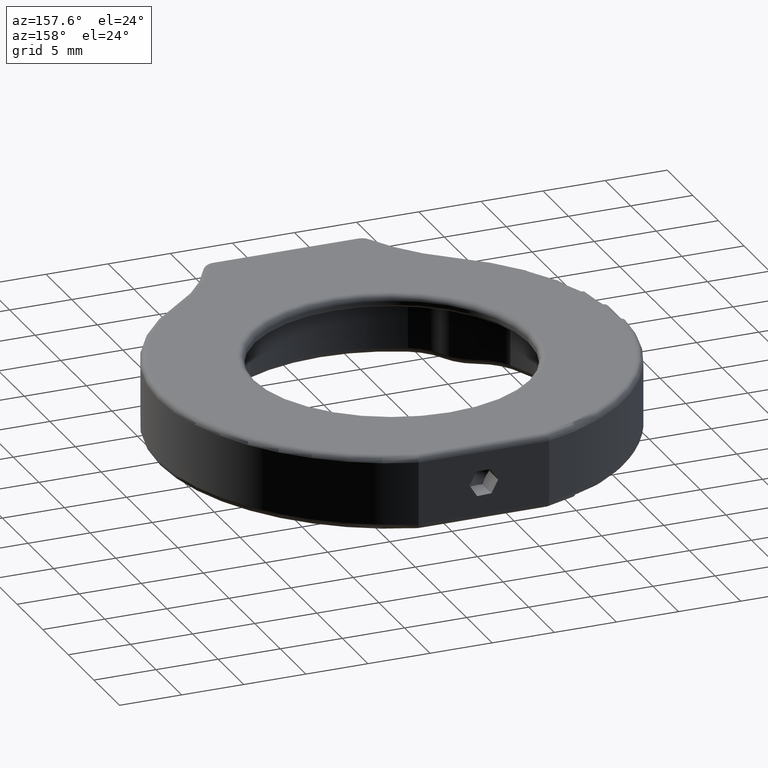
[diagram: clean part render]
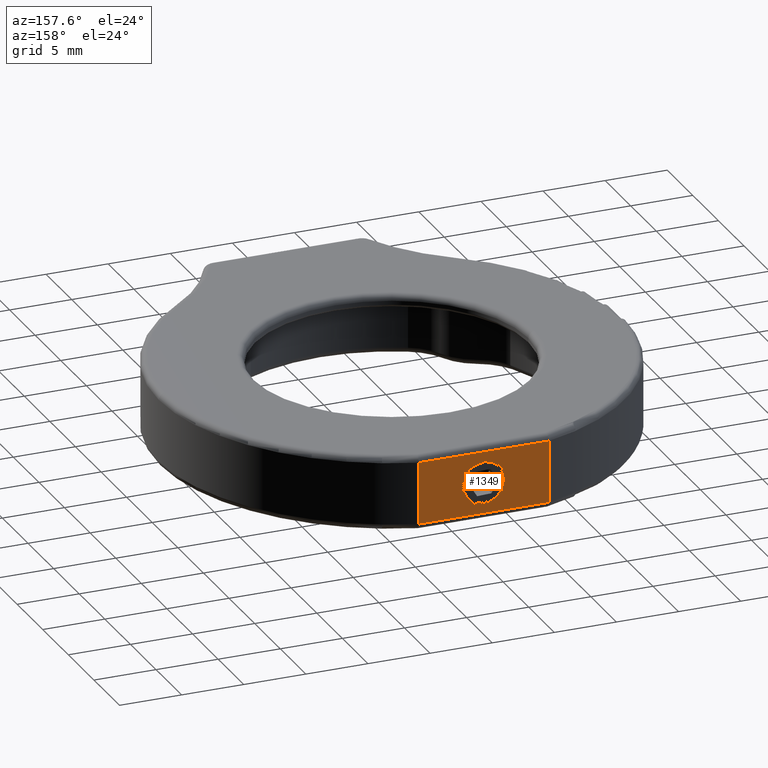
[diagram: same view with one face highlighted and labeled with its STEP entity id]
A machine part, auxiliary view. The second image highlights one B-rep face of the part: STEP entity #1349.
In plain terms, the highlighted planar face has unit normal (0, 1, 0).
Its self-contained STEP definition (entity closure, byte-faithful):
#87 = DIRECTION ( 'NONE',  ( -0.0000000000000000000, -0.0000000000000000000, -1.000000000000000000 ) ) ;
#94 = DIRECTION ( 'NONE',  ( 0.0000000000000000000, -0.0000000000000000000, 1.000000000000000000 ) ) ;
#147 = DIRECTION ( 'NONE',  ( -0.0000000000000000000, 1.000000000000000000, -0.0000000000000000000 ) ) ;
#173 = LINE ( 'NONE', #2529, #1176 ) ;
#281 = ORIENTED_EDGE ( 'NONE', *, *, #2135, .T. ) ;
#309 = EDGE_CURVE ( 'NONE', #747, #2639, #675, .T. ) ;
#325 = PLANE ( 'NONE',  #449 ) ;
#332 = CARTESIAN_POINT ( 'NONE',  ( 2.667861014286739200, 20.57740540961609800, 44.99999999998590300 ) ) ;
#395 = DIRECTION ( 'NONE',  ( -1.000000000000000000, 0.0000000000000000000, -0.0000000000000000000 ) ) ;
#449 = AXIS2_PLACEMENT_3D ( 'NONE', #332, #2253, #94 ) ;
#458 = VERTEX_POINT ( 'NONE', #2332 ) ;
#465 = CARTESIAN_POINT ( 'NONE',  ( 2.667861014286739200, 20.57740540961609800, 40.34999999998592600 ) ) ;
#675 = CIRCLE ( 'NONE', #1592, 1.649999999999984800 ) ;
#700 = FACE_BOUND ( 'NONE', #1170, .T. ) ;
#747 = VERTEX_POINT ( 'NONE', #465 ) ;
#801 = CARTESIAN_POINT ( 'NONE',  ( 7.917861014286740100, 20.57740540961609800, 44.99999999998590300 ) ) ;
#891 = ORIENTED_EDGE ( 'NONE', *, *, #2096, .F. ) ;
#1107 = EDGE_CURVE ( 'NONE', #458, #1695, #173, .T. ) ;
#1170 = EDGE_LOOP ( 'NONE', ( #891, #2333 ) ) ;
#1176 = VECTOR ( 'NONE', #395, 1000.000000000000000 ) ;
#1234 = LINE ( 'NONE', #2469, #1381 ) ;
#1337 = VERTEX_POINT ( 'NONE', #2677 ) ;
#1349 = ADVANCED_FACE ( 'NONE', ( #700, #2130 ), #325, .T. ) ;
#1381 = VECTOR ( 'NONE', #87, 1000.000000000000000 ) ;
#1391 = CARTESIAN_POINT ( 'NONE',  ( 2.667861014286739200, 20.57740540961609800, 43.64999999998589400 ) ) ;
#1434 = EDGE_CURVE ( 'NONE', #2544, #1695, #1234, .T. ) ;
#1583 = CARTESIAN_POINT ( 'NONE',  ( -2.582138985713263100, 20.57740540961609800, 44.49999999998590300 ) ) ;
#1592 = AXIS2_PLACEMENT_3D ( 'NONE', #1638, #1646, #2289 ) ;
#1638 = CARTESIAN_POINT ( 'NONE',  ( 2.667861014286739200, 20.57740540961609800, 41.99999999998591000 ) ) ;
#1646 = DIRECTION ( 'NONE',  ( -0.0000000000000000000, 1.000000000000000000, -0.0000000000000000000 ) ) ;
#1695 = VERTEX_POINT ( 'NONE', #2325 ) ;
#1817 = LINE ( 'NONE', #1847, #2288 ) ;
#1847 = CARTESIAN_POINT ( 'NONE',  ( 2.667861014286739200, 20.57740540961609800, 44.49999999998590300 ) ) ;
#1929 = DIRECTION ( 'NONE',  ( 0.0000000000000000000, 0.0000000000000000000, 1.000000000000000000 ) ) ;
#1976 = ORIENTED_EDGE ( 'NONE', *, *, #1987, .T. ) ;
#1987 = EDGE_CURVE ( 'NONE', #2544, #1337, #1817, .T. ) ;
#2007 = ORIENTED_EDGE ( 'NONE', *, *, #1107, .T. ) ;
#2024 = VECTOR ( 'NONE', #2721, 1000.000000000000000 ) ;
#2096 = EDGE_CURVE ( 'NONE', #2639, #747, #2422, .T. ) ;
#2130 = FACE_OUTER_BOUND ( 'NONE', #2481, .T. ) ;
#2135 = EDGE_CURVE ( 'NONE', #1337, #458, #2585, .T. ) ;
#2253 = DIRECTION ( 'NONE',  ( 0.0000000000000000000, 1.000000000000000000, 0.0000000000000000000 ) ) ;
#2260 = DIRECTION ( 'NONE',  ( 1.000000000000000000, -0.0000000000000000000, 0.0000000000000000000 ) ) ;
#2288 = VECTOR ( 'NONE', #2260, 1000.000000000000000 ) ;
#2289 = DIRECTION ( 'NONE',  ( 0.0000000000000000000, 0.0000000000000000000, 1.000000000000000000 ) ) ;
#2325 = CARTESIAN_POINT ( 'NONE',  ( -2.582138985713263100, 20.57740540961609800, 39.49999999998591000 ) ) ;
#2332 = CARTESIAN_POINT ( 'NONE',  ( 7.917861014286740100, 20.57740540961609800, 39.49999999998591000 ) ) ;
#2333 = ORIENTED_EDGE ( 'NONE', *, *, #309, .F. ) ;
#2345 = AXIS2_PLACEMENT_3D ( 'NONE', #2515, #147, #1929 ) ;
#2422 = CIRCLE ( 'NONE', #2345, 1.649999999999984800 ) ;
#2437 = ORIENTED_EDGE ( 'NONE', *, *, #1434, .F. ) ;
#2469 = CARTESIAN_POINT ( 'NONE',  ( -2.582138985713263100, 20.57740540961609800, 44.99999999998590300 ) ) ;
#2481 = EDGE_LOOP ( 'NONE', ( #281, #2007, #2437, #1976 ) ) ;
#2515 = CARTESIAN_POINT ( 'NONE',  ( 2.667861014286739200, 20.57740540961609800, 41.99999999998591000 ) ) ;
#2529 = CARTESIAN_POINT ( 'NONE',  ( -2.582138985713263100, 20.57740540961609800, 39.49999999998591000 ) ) ;
#2544 = VERTEX_POINT ( 'NONE', #1583 ) ;
#2585 = LINE ( 'NONE', #801, #2024 ) ;
#2639 = VERTEX_POINT ( 'NONE', #1391 ) ;
#2677 = CARTESIAN_POINT ( 'NONE',  ( 7.917861014286740100, 20.57740540961609800, 44.49999999998590300 ) ) ;
#2721 = DIRECTION ( 'NONE',  ( -0.0000000000000000000, -0.0000000000000000000, -1.000000000000000000 ) ) ;